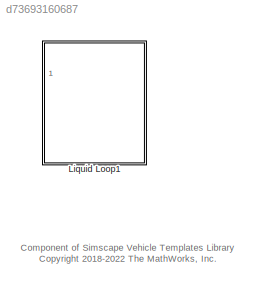
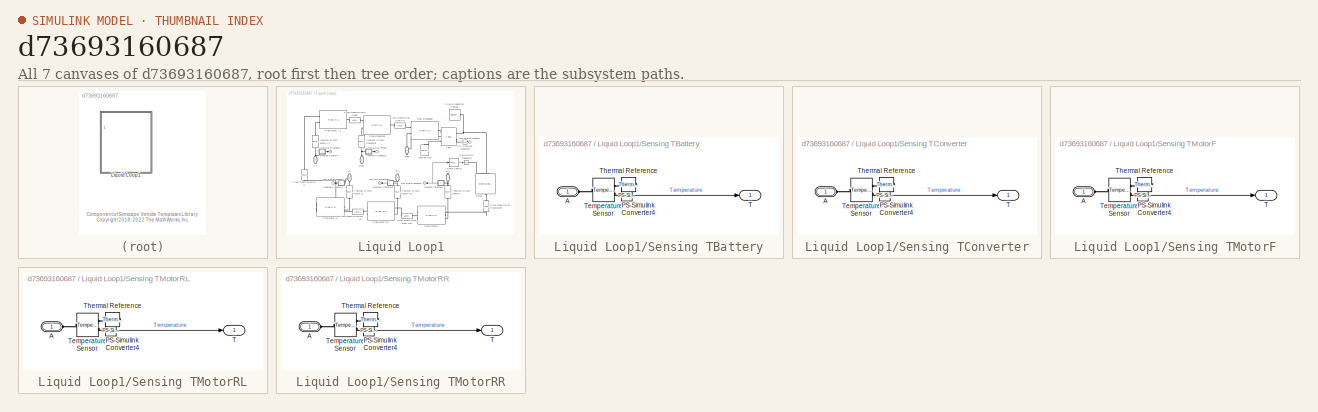
[diagram: thumbnail index - all 7 canvases of the model, root first then tree order]
MODEL slx_d73693160687
KIND library
CONFIG AbsTol = auto
CONFIG EnableMultiTasking = off
CONFIG FixedStep = auto
CONFIG MaxStep = auto
CONFIG MinStep = auto
CONFIG RelTol = 1e-3
CONFIG SampleTimeConstraint = Unconstrained
CONFIG SolverName = VariableStepAuto
CONFIG StartTime = 0.0
CONFIG StopTime = 10.0
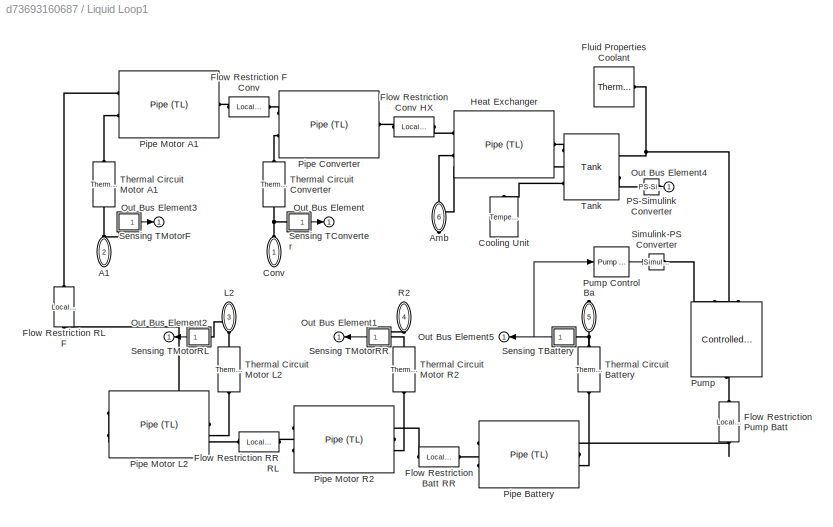
BLOCK [SubSystem] Liquid Loop1
  Ports = [0, 1, 0, 0, 0, 4, 2]
  RequestExecContextInheritance = off
  VariantControl = Active_1_Loop
BLOCK [PMIOPort] Liquid Loop1/A1
  NameLocation = right
  Port = 2
  Side = Left
BLOCK [PMIOPort] Liquid Loop1/Amb
  NameLocation = right
  Port = 6
  Side = Right
BLOCK [PMIOPort] Liquid Loop1/Ba
  NameLocation = right
  Port = 5
  Side = Right
BLOCK [PMIOPort] Liquid Loop1/Conv
  NameLocation = left
  Side = Left
BLOCK [Reference] Liquid Loop1/Cooling Unit  REF=fl_lib/Thermal/Thermal Sources/Temperature Source
  NameLocation = right
  Ports = [0, 0, 0, 0, 0, 1]
  SourceBlock = fl_lib/Thermal/Thermal Sources/Temperature Source
  SourceProductBaseCode = PW,SS,VE
  SourceType = Temperature Source
BLOCK [Reference] Liquid Loop1/Flow Restriction Batt RR  REF=fl_lib/Thermal Liquid/Elements/Local Restriction
(TL)
  Ports = [0, 0, 0, 0, 0, 1, 1]
  SourceBlock = fl_lib/Thermal Liquid/Elements/Local Restriction\n(TL)
  SourceProductBaseCode = PW,SS,VE
  SourceType = Local Restriction\n(TL)
BLOCK [Reference] Liquid Loop1/Flow Restriction Conv HX  REF=fl_lib/Thermal Liquid/Elements/Local Restriction
(TL)
  NameLocation = top
  Ports = [0, 0, 0, 0, 0, 1, 1]
  SourceBlock = fl_lib/Thermal Liquid/Elements/Local Restriction\n(TL)
  SourceProductBaseCode = PW,SS,VE
  SourceType = Local Restriction\n(TL)
BLOCK [Reference] Liquid Loop1/Flow Restriction F Conv  REF=fl_lib/Thermal Liquid/Elements/Local Restriction
(TL)
  NameLocation = top
  Ports = [0, 0, 0, 0, 0, 1, 1]
  SourceBlock = fl_lib/Thermal Liquid/Elements/Local Restriction\n(TL)
  SourceProductBaseCode = PW,SS,VE
  SourceType = Local Restriction\n(TL)
BLOCK [Reference] Liquid Loop1/Flow Restriction Pump Batt  REF=fl_lib/Thermal Liquid/Elements/Local Restriction
(TL)
  NameLocation = left
  Ports = [0, 0, 0, 0, 0, 1, 1]
  SourceBlock = fl_lib/Thermal Liquid/Elements/Local Restriction\n(TL)
  SourceProductBaseCode = PW,SS,VE
  SourceType = Local Restriction\n(TL)
BLOCK [Reference] Liquid Loop1/Flow Restriction RL F  REF=fl_lib/Thermal Liquid/Elements/Local Restriction
(TL)
  NameLocation = right
  Ports = [0, 0, 0, 0, 0, 1, 1]
  SourceBlock = fl_lib/Thermal Liquid/Elements/Local Restriction\n(TL)
  SourceProductBaseCode = PW,SS,VE
  SourceType = Local Restriction\n(TL)
BLOCK [Reference] Liquid Loop1/Flow Restriction RR RL  REF=fl_lib/Thermal Liquid/Elements/Local Restriction
(TL)
  NameLocation = top
  Ports = [0, 0, 0, 0, 0, 1, 1]
  SourceBlock = fl_lib/Thermal Liquid/Elements/Local Restriction\n(TL)
  SourceProductBaseCode = PW,SS,VE
  SourceType = Local Restriction\n(TL)
BLOCK [Reference] Liquid Loop1/Fluid Properties Coolant   REF=SimscapeFluids_lib/Thermal Liquid/Utilities/Thermal Liquid
Properties (TL)
  NameLocation = top
  Ports = [0, 0, 0, 0, 0, 0, 1]
  SourceBlock = SimscapeFluids_lib/Thermal Liquid/Utilities/Thermal Liquid\nProperties (TL)
  SourceProductBaseCode = SH
  SourceType = Thermal Liquid\nProperties (TL)
BLOCK [Reference] Liquid Loop1/Heat Exchanger  REF=SimscapeFluids_lib/Thermal Liquid/Pipes & Fittings/Pipe (TL)
  NameLocation = top
  Ports = [0, 0, 0, 0, 0, 2, 1]
  SourceBlock = SimscapeFluids_lib/Thermal Liquid/Pipes & Fittings/Pipe (TL)
  SourceProductBaseCode = SH
  SourceType = Pipe (TL)
BLOCK [PMIOPort] Liquid Loop1/L2
  NameLocation = left
  Port = 3
  Side = Left
BLOCK [Outport] Liquid Loop1/Out Bus Element
  VectorParamsAs1DForOutWhenUnconnected = off
BLOCK [Outport] Liquid Loop1/Out Bus Element1
  NameLocation = top
  VectorParamsAs1DForOutWhenUnconnected = off
BLOCK [Outport] Liquid Loop1/Out Bus Element2
  NameLocation = top
  VectorParamsAs1DForOutWhenUnconnected = off
BLOCK [Outport] Liquid Loop1/Out Bus Element3
  NameLocation = top
  VectorParamsAs1DForOutWhenUnconnected = off
BLOCK [Outport] Liquid Loop1/Out Bus Element4
  NameLocation = top
  VectorParamsAs1DForOutWhenUnconnected = off
BLOCK [Outport] Liquid Loop1/Out Bus Element5
  NameLocation = top
  VectorParamsAs1DForOutWhenUnconnected = off
BLOCK [Reference] Liquid Loop1/PS-Simulink Converter  REF=nesl_utility/PS-Simulink
Converter
  Ports = [0, 1, 0, 0, 0, 1]
  SourceBlock = nesl_utility/PS-Simulink\nConverter
  SourceProductBaseCode = SS,PW,VE
  SourceType = PS-Simulink\nConverter
BLOCK [Reference] Liquid Loop1/Pipe Battery  REF=SimscapeFluids_lib/Thermal Liquid/Pipes & Fittings/Pipe (TL)
  Ports = [0, 0, 0, 0, 0, 2, 1]
  SourceBlock = SimscapeFluids_lib/Thermal Liquid/Pipes & Fittings/Pipe (TL)
  SourceProductBaseCode = SH
  SourceType = Pipe (TL)
BLOCK [Reference] Liquid Loop1/Pipe Converter  REF=SimscapeFluids_lib/Thermal Liquid/Pipes & Fittings/Pipe (TL)
  NameLocation = top
  Ports = [0, 0, 0, 0, 0, 2, 1]
  SourceBlock = SimscapeFluids_lib/Thermal Liquid/Pipes & Fittings/Pipe (TL)
  SourceProductBaseCode = SH
  SourceType = Pipe (TL)
BLOCK [Reference] Liquid Loop1/Pipe Motor A1  REF=SimscapeFluids_lib/Thermal Liquid/Pipes & Fittings/Pipe (TL)
  NameLocation = top
  Ports = [0, 0, 0, 0, 0, 2, 1]
  SourceBlock = SimscapeFluids_lib/Thermal Liquid/Pipes & Fittings/Pipe (TL)
  SourceProductBaseCode = SH
  SourceType = Pipe (TL)
BLOCK [Reference] Liquid Loop1/Pipe Motor L2  REF=SimscapeFluids_lib/Thermal Liquid/Pipes & Fittings/Pipe (TL)
  Ports = [0, 0, 0, 0, 0, 2, 1]
  SourceBlock = SimscapeFluids_lib/Thermal Liquid/Pipes & Fittings/Pipe (TL)
  SourceProductBaseCode = SH
  SourceType = Pipe (TL)
BLOCK [Reference] Liquid Loop1/Pipe Motor R2  REF=SimscapeFluids_lib/Thermal Liquid/Pipes & Fittings/Pipe (TL)
  Ports = [0, 0, 0, 0, 0, 2, 1]
  SourceBlock = SimscapeFluids_lib/Thermal Liquid/Pipes & Fittings/Pipe (TL)
  SourceProductBaseCode = SH
  SourceType = Pipe (TL)
BLOCK [Reference] Liquid Loop1/Pump  REF=fl_lib/Thermal Liquid/Sources/Controlled Mass Flow
Rate Source (TL)
  NameLocation = left
  Ports = [0, 0, 0, 0, 0, 2, 1]
  SourceBlock = fl_lib/Thermal Liquid/Sources/Controlled Mass Flow\nRate Source (TL)
  SourceProductBaseCode = PW,SS,VE
  SourceType = Controlled Mass Flow\nRate Source (TL)
BLOCK [Reference] Liquid Loop1/Pump Control  REF=Cooling_Components/Pump Control
  Ports = [1, 1]
  SourceBlock = Cooling_Components/Pump Control
  SourceType = SubSystem
BLOCK [PMIOPort] Liquid Loop1/R2
  NameLocation = right
  Port = 4
  Side = Left
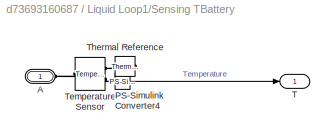
BLOCK [SubSystem] Liquid Loop1/Sensing TBattery
  Ports = [0, 1, 0, 0, 0, 1]
  RequestExecContextInheritance = off
BLOCK [PMIOPort] Liquid Loop1/Sensing TBattery/A
  Side = Left
BLOCK [Reference] Liquid Loop1/Sensing TBattery/PS-Simulink Converter4  REF=nesl_utility/PS-Simulink
Converter
  Ports = [0, 1, 0, 0, 0, 1]
  SourceBlock = nesl_utility/PS-Simulink\nConverter
  SourceProductBaseCode = SS,PW,VE
  SourceType = PS-Simulink\nConverter
BLOCK [Outport] Liquid Loop1/Sensing TBattery/T
  VectorParamsAs1DForOutWhenUnconnected = off
BLOCK [Reference] Liquid Loop1/Sensing TBattery/Temperature Sensor  REF=fl_lib/Thermal/Thermal Sensors/Temperature Sensor
  Ports = [0, 0, 0, 0, 0, 1, 2]
  SourceBlock = fl_lib/Thermal/Thermal Sensors/Temperature Sensor
  SourceProductBaseCode = PW,SS,VE
  SourceType = Temperature Sensor
BLOCK [Reference] Liquid Loop1/Sensing TBattery/Thermal Reference  REF=fl_lib/Thermal/Thermal Elements/Thermal Reference
  NameLocation = top
  Ports = [0, 0, 0, 0, 0, 1]
  SourceBlock = fl_lib/Thermal/Thermal Elements/Thermal Reference
  SourceProductBaseCode = PW,SS,VE
  SourceType = Thermal Reference
BLOCK [SubSystem] Liquid Loop1/Sensing TConverter
  Ports = [0, 1, 0, 0, 0, 1]
  RequestExecContextInheritance = off
BLOCK [PMIOPort] Liquid Loop1/Sensing TConverter/A
  Side = Left
BLOCK [Reference] Liquid Loop1/Sensing TConverter/PS-Simulink Converter4  REF=nesl_utility/PS-Simulink
Converter
  Ports = [0, 1, 0, 0, 0, 1]
  SourceBlock = nesl_utility/PS-Simulink\nConverter
  SourceProductBaseCode = SS,PW,VE
  SourceType = PS-Simulink\nConverter
BLOCK [Outport] Liquid Loop1/Sensing TConverter/T
  VectorParamsAs1DForOutWhenUnconnected = off
BLOCK [Reference] Liquid Loop1/Sensing TConverter/Temperature Sensor  REF=fl_lib/Thermal/Thermal Sensors/Temperature Sensor
  Ports = [0, 0, 0, 0, 0, 1, 2]
  SourceBlock = fl_lib/Thermal/Thermal Sensors/Temperature Sensor
  SourceProductBaseCode = PW,SS,VE
  SourceType = Temperature Sensor
BLOCK [Reference] Liquid Loop1/Sensing TConverter/Thermal Reference  REF=fl_lib/Thermal/Thermal Elements/Thermal Reference
  NameLocation = top
  Ports = [0, 0, 0, 0, 0, 1]
  SourceBlock = fl_lib/Thermal/Thermal Elements/Thermal Reference
  SourceProductBaseCode = PW,SS,VE
  SourceType = Thermal Reference
BLOCK [SubSystem] Liquid Loop1/Sensing TMotorF
  Ports = [0, 1, 0, 0, 0, 1]
  RequestExecContextInheritance = off
BLOCK [PMIOPort] Liquid Loop1/Sensing TMotorF/A
  Side = Left
BLOCK [Reference] Liquid Loop1/Sensing TMotorF/PS-Simulink Converter4  REF=nesl_utility/PS-Simulink
Converter
  Ports = [0, 1, 0, 0, 0, 1]
  SourceBlock = nesl_utility/PS-Simulink\nConverter
  SourceProductBaseCode = SS,PW,VE
  SourceType = PS-Simulink\nConverter
BLOCK [Outport] Liquid Loop1/Sensing TMotorF/T
  VectorParamsAs1DForOutWhenUnconnected = off
BLOCK [Reference] Liquid Loop1/Sensing TMotorF/Temperature Sensor  REF=fl_lib/Thermal/Thermal Sensors/Temperature Sensor
  Ports = [0, 0, 0, 0, 0, 1, 2]
  SourceBlock = fl_lib/Thermal/Thermal Sensors/Temperature Sensor
  SourceProductBaseCode = PW,SS,VE
  SourceType = Temperature Sensor
BLOCK [Reference] Liquid Loop1/Sensing TMotorF/Thermal Reference  REF=fl_lib/Thermal/Thermal Elements/Thermal Reference
  NameLocation = top
  Ports = [0, 0, 0, 0, 0, 1]
  SourceBlock = fl_lib/Thermal/Thermal Elements/Thermal Reference
  SourceProductBaseCode = PW,SS,VE
  SourceType = Thermal Reference
BLOCK [SubSystem] Liquid Loop1/Sensing TMotorRL
  Ports = [0, 1, 0, 0, 0, 1]
  RequestExecContextInheritance = off
BLOCK [PMIOPort] Liquid Loop1/Sensing TMotorRL/A
  Side = Left
BLOCK [Reference] Liquid Loop1/Sensing TMotorRL/PS-Simulink Converter4  REF=nesl_utility/PS-Simulink
Converter
  Ports = [0, 1, 0, 0, 0, 1]
  SourceBlock = nesl_utility/PS-Simulink\nConverter
  SourceProductBaseCode = SS,PW,VE
  SourceType = PS-Simulink\nConverter
BLOCK [Outport] Liquid Loop1/Sensing TMotorRL/T
  VectorParamsAs1DForOutWhenUnconnected = off
BLOCK [Reference] Liquid Loop1/Sensing TMotorRL/Temperature Sensor  REF=fl_lib/Thermal/Thermal Sensors/Temperature Sensor
  Ports = [0, 0, 0, 0, 0, 1, 2]
  SourceBlock = fl_lib/Thermal/Thermal Sensors/Temperature Sensor
  SourceProductBaseCode = PW,SS,VE
  SourceType = Temperature Sensor
BLOCK [Reference] Liquid Loop1/Sensing TMotorRL/Thermal Reference  REF=fl_lib/Thermal/Thermal Elements/Thermal Reference
  NameLocation = top
  Ports = [0, 0, 0, 0, 0, 1]
  SourceBlock = fl_lib/Thermal/Thermal Elements/Thermal Reference
  SourceProductBaseCode = PW,SS,VE
  SourceType = Thermal Reference
BLOCK [SubSystem] Liquid Loop1/Sensing TMotorRR
  Ports = [0, 1, 0, 0, 0, 1]
  RequestExecContextInheritance = off
BLOCK [PMIOPort] Liquid Loop1/Sensing TMotorRR/A
  Side = Left
BLOCK [Reference] Liquid Loop1/Sensing TMotorRR/PS-Simulink Converter4  REF=nesl_utility/PS-Simulink
Converter
  Ports = [0, 1, 0, 0, 0, 1]
  SourceBlock = nesl_utility/PS-Simulink\nConverter
  SourceProductBaseCode = SS,PW,VE
  SourceType = PS-Simulink\nConverter
BLOCK [Outport] Liquid Loop1/Sensing TMotorRR/T
  VectorParamsAs1DForOutWhenUnconnected = off
BLOCK [Reference] Liquid Loop1/Sensing TMotorRR/Temperature Sensor  REF=fl_lib/Thermal/Thermal Sensors/Temperature Sensor
  Ports = [0, 0, 0, 0, 0, 1, 2]
  SourceBlock = fl_lib/Thermal/Thermal Sensors/Temperature Sensor
  SourceProductBaseCode = PW,SS,VE
  SourceType = Temperature Sensor
BLOCK [Reference] Liquid Loop1/Sensing TMotorRR/Thermal Reference  REF=fl_lib/Thermal/Thermal Elements/Thermal Reference
  NameLocation = top
  Ports = [0, 0, 0, 0, 0, 1]
  SourceBlock = fl_lib/Thermal/Thermal Elements/Thermal Reference
  SourceProductBaseCode = PW,SS,VE
  SourceType = Thermal Reference
BLOCK [Reference] Liquid Loop1/Simulink-PS Converter  REF=nesl_utility/Simulink-PS
Converter
  Ports = [1, 0, 0, 0, 0, 0, 1]
  SourceBlock = nesl_utility/Simulink-PS\nConverter
  SourceProductBaseCode = SS,PW,VE
  SourceType = Simulink-PS\nConverter
BLOCK [Reference] Liquid Loop1/Tank  REF=Cooling_Components/Tank
  Ports = [0, 0, 0, 0, 0, 3, 2]
  SourceBlock = Cooling_Components/Tank
  SourceType = SubSystem
BLOCK [Reference] Liquid Loop1/Thermal Circuit Battery  REF=Cooling_Components/Thermal
Circuit
Battery
  NameLocation = left
  Ports = [0, 0, 0, 0, 0, 1, 1]
  SourceBlock = Cooling_Components/Thermal\nCircuit\nBattery
  SourceType = SubSystem
BLOCK [Reference] Liquid Loop1/Thermal Circuit Converter  REF=Cooling_Components/Thermal
Circuit
Converter
  NameLocation = right
  Ports = [0, 0, 0, 0, 0, 1, 1]
  SourceBlock = Cooling_Components/Thermal\nCircuit\nConverter
  SourceType = SubSystem
BLOCK [Reference] Liquid Loop1/Thermal Circuit Motor A1  REF=Cooling_Components/Thermal
Circuit
Motor
  NameLocation = right
  Ports = [0, 0, 0, 0, 0, 1, 1]
  SourceBlock = Cooling_Components/Thermal\nCircuit\nMotor
  SourceType = SubSystem
BLOCK [Reference] Liquid Loop1/Thermal Circuit Motor L2  REF=Cooling_Components/Thermal
Circuit
Motor
  NameLocation = left
  Ports = [0, 0, 0, 0, 0, 1, 1]
  SourceBlock = Cooling_Components/Thermal\nCircuit\nMotor
  SourceType = SubSystem
BLOCK [Reference] Liquid Loop1/Thermal Circuit Motor R2  REF=Cooling_Components/Thermal
Circuit
Motor
  NameLocation = left
  Ports = [0, 0, 0, 0, 0, 1, 1]
  SourceBlock = Cooling_Components/Thermal\nCircuit\nMotor
  SourceType = SubSystem
ANNOTATION (root): Component of Simscape Vehicle Templates Library <copyright redacted>
LINE Liquid Loop1/PS-Simulink Converter:1 -> Liquid Loop1/Out Bus Element4:1
LINE Liquid Loop1/Pump Control:1 -> Liquid Loop1/Simulink-PS Converter:1
LINE Liquid Loop1/Sensing TBattery/PS-Simulink Converter4:1 -> Liquid Loop1/Sensing TBattery/T:1
NET Liquid Loop1/Sensing TBattery:1 -> Liquid Loop1/Out Bus Element5:1, Liquid Loop1/Pump Control:1
LINE Liquid Loop1/Sensing TConverter/PS-Simulink Converter4:1 -> Liquid Loop1/Sensing TConverter/T:1
LINE Liquid Loop1/Sensing TConverter:1 -> Liquid Loop1/Out Bus Element:1
LINE Liquid Loop1/Sensing TMotorF/PS-Simulink Converter4:1 -> Liquid Loop1/Sensing TMotorF/T:1
LINE Liquid Loop1/Sensing TMotorF:1 -> Liquid Loop1/Out Bus Element3:1
LINE Liquid Loop1/Sensing TMotorRL/PS-Simulink Converter4:1 -> Liquid Loop1/Sensing TMotorRL/T:1
LINE Liquid Loop1/Sensing TMotorRL:1 -> Liquid Loop1/Out Bus Element2:1
LINE Liquid Loop1/Sensing TMotorRR/PS-Simulink Converter4:1 -> Liquid Loop1/Sensing TMotorRR/T:1
LINE Liquid Loop1/Sensing TMotorRR:1 -> Liquid Loop1/Out Bus Element1:1
PNET net1: Liquid Loop1/A1:RConn1 -- Liquid Loop1/Sensing TMotorF:LConn1 -- Liquid Loop1/Thermal Circuit Motor A1:LConn1
PNET net2: Liquid Loop1/Amb:RConn1 -- Liquid Loop1/Heat Exchanger:LConn2 -- Liquid Loop1/Tank:LConn2
PNET net3: Liquid Loop1/Ba:RConn1 -- Liquid Loop1/Sensing TBattery:LConn1 -- Liquid Loop1/Thermal Circuit Battery:LConn1
PNET net4: Liquid Loop1/Conv:RConn1 -- Liquid Loop1/Sensing TConverter:LConn1 -- Liquid Loop1/Thermal Circuit Converter:LConn1
PLINE Liquid Loop1/Cooling Unit:LConn1 -- Liquid Loop1/Tank:LConn3
PLINE Liquid Loop1/Flow Restriction Batt RR:LConn1 -- Liquid Loop1/Pipe Battery:RConn1
PLINE Liquid Loop1/Flow Restriction Batt RR:RConn1 -- Liquid Loop1/Pipe Motor R2:LConn1
PLINE Liquid Loop1/Flow Restriction Conv HX:LConn1 -- Liquid Loop1/Pipe Converter:RConn1
PLINE Liquid Loop1/Flow Restriction Conv HX:RConn1 -- Liquid Loop1/Heat Exchanger:LConn1
PLINE Liquid Loop1/Flow Restriction F Conv:LConn1 -- Liquid Loop1/Pipe Motor A1:RConn1
PLINE Liquid Loop1/Flow Restriction F Conv:RConn1 -- Liquid Loop1/Pipe Converter:LConn1
PLINE Liquid Loop1/Flow Restriction Pump Batt:LConn1 -- Liquid Loop1/Pump:RConn1
PLINE Liquid Loop1/Flow Restriction Pump Batt:RConn1 -- Liquid Loop1/Pipe Battery:LConn1
PLINE Liquid Loop1/Flow Restriction RL F:LConn1 -- Liquid Loop1/Pipe Motor L2:RConn1
PLINE Liquid Loop1/Flow Restriction RL F:RConn1 -- Liquid Loop1/Pipe Motor A1:LConn1
PLINE Liquid Loop1/Flow Restriction RR RL:LConn1 -- Liquid Loop1/Pipe Motor R2:RConn1
PLINE Liquid Loop1/Flow Restriction RR RL:RConn1 -- Liquid Loop1/Pipe Motor L2:LConn1
PNET net5: Liquid Loop1/Fluid Properties Coolant :RConn1 -- Liquid Loop1/Pump:LConn1 -- Liquid Loop1/Tank:RConn1
PLINE Liquid Loop1/Heat Exchanger:RConn1 -- Liquid Loop1/Tank:LConn1
PNET net6: Liquid Loop1/L2:RConn1 -- Liquid Loop1/Sensing TMotorRL:LConn1 -- Liquid Loop1/Thermal Circuit Motor L2:LConn1
PLINE Liquid Loop1/PS-Simulink Converter:LConn1 -- Liquid Loop1/Tank:RConn2
PLINE Liquid Loop1/Pipe Battery:LConn2 -- Liquid Loop1/Thermal Circuit Battery:RConn1
PLINE Liquid Loop1/Pipe Converter:LConn2 -- Liquid Loop1/Thermal Circuit Converter:RConn1
PLINE Liquid Loop1/Pipe Motor A1:LConn2 -- Liquid Loop1/Thermal Circuit Motor A1:RConn1
PLINE Liquid Loop1/Pipe Motor L2:LConn2 -- Liquid Loop1/Thermal Circuit Motor L2:RConn1
PLINE Liquid Loop1/Pipe Motor R2:LConn2 -- Liquid Loop1/Thermal Circuit Motor R2:RConn1
PLINE Liquid Loop1/Pump:LConn2 -- Liquid Loop1/Simulink-PS Converter:RConn1
PNET net7: Liquid Loop1/R2:RConn1 -- Liquid Loop1/Sensing TMotorRR:LConn1 -- Liquid Loop1/Thermal Circuit Motor R2:LConn1
PLINE Liquid Loop1/Sensing TBattery/A:RConn1 -- Liquid Loop1/Sensing TBattery/Temperature Sensor:LConn1
PLINE Liquid Loop1/Sensing TBattery/PS-Simulink Converter4:LConn1 -- Liquid Loop1/Sensing TBattery/Temperature Sensor:RConn2
PLINE Liquid Loop1/Sensing TBattery/Temperature Sensor:RConn1 -- Liquid Loop1/Sensing TBattery/Thermal Reference:LConn1
PLINE Liquid Loop1/Sensing TConverter/A:RConn1 -- Liquid Loop1/Sensing TConverter/Temperature Sensor:LConn1
PLINE Liquid Loop1/Sensing TConverter/PS-Simulink Converter4:LConn1 -- Liquid Loop1/Sensing TConverter/Temperature Sensor:RConn2
PLINE Liquid Loop1/Sensing TConverter/Temperature Sensor:RConn1 -- Liquid Loop1/Sensing TConverter/Thermal Reference:LConn1
PLINE Liquid Loop1/Sensing TMotorF/A:RConn1 -- Liquid Loop1/Sensing TMotorF/Temperature Sensor:LConn1
PLINE Liquid Loop1/Sensing TMotorF/PS-Simulink Converter4:LConn1 -- Liquid Loop1/Sensing TMotorF/Temperature Sensor:RConn2
PLINE Liquid Loop1/Sensing TMotorF/Temperature Sensor:RConn1 -- Liquid Loop1/Sensing TMotorF/Thermal Reference:LConn1
PLINE Liquid Loop1/Sensing TMotorRL/A:RConn1 -- Liquid Loop1/Sensing TMotorRL/Temperature Sensor:LConn1
PLINE Liquid Loop1/Sensing TMotorRL/PS-Simulink Converter4:LConn1 -- Liquid Loop1/Sensing TMotorRL/Temperature Sensor:RConn2
PLINE Liquid Loop1/Sensing TMotorRL/Temperature Sensor:RConn1 -- Liquid Loop1/Sensing TMotorRL/Thermal Reference:LConn1
PLINE Liquid Loop1/Sensing TMotorRR/A:RConn1 -- Liquid Loop1/Sensing TMotorRR/Temperature Sensor:LConn1
PLINE Liquid Loop1/Sensing TMotorRR/PS-Simulink Converter4:LConn1 -- Liquid Loop1/Sensing TMotorRR/Temperature Sensor:RConn2
PLINE Liquid Loop1/Sensing TMotorRR/Temperature Sensor:RConn1 -- Liquid Loop1/Sensing TMotorRR/Thermal Reference:LConn1
note: NET lines group one-source signal fan-out (src -> all destinations, sorted); 1:1 wires keep LINE; PNET lines group multi-terminal physical nets as a canonical sorted terminal list (undirected conserving connections); 2-terminal nets keep the pairwise PLINE form
